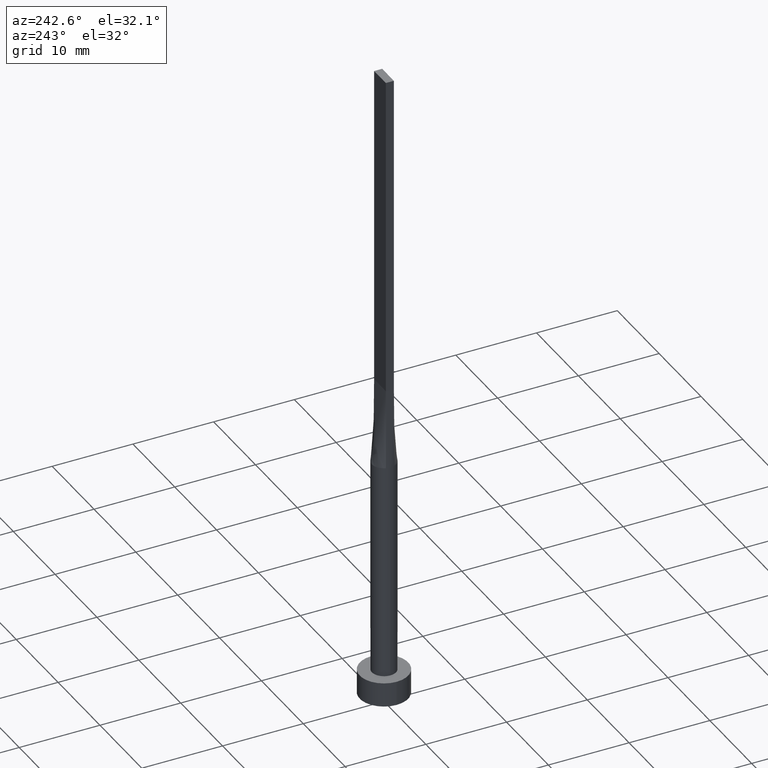
[diagram: clean part render]
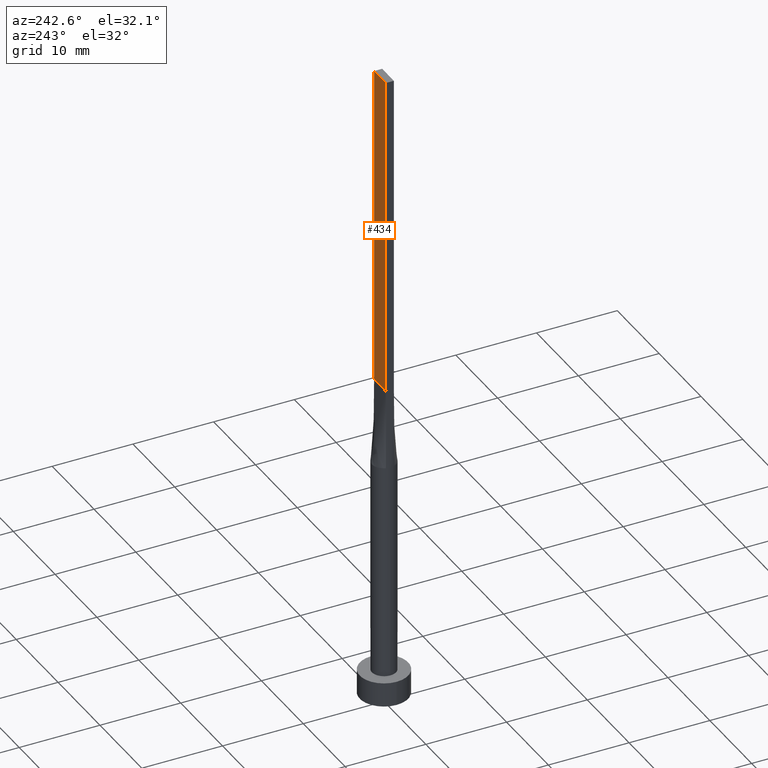
[diagram: same view with one face highlighted and labeled with its STEP entity id]
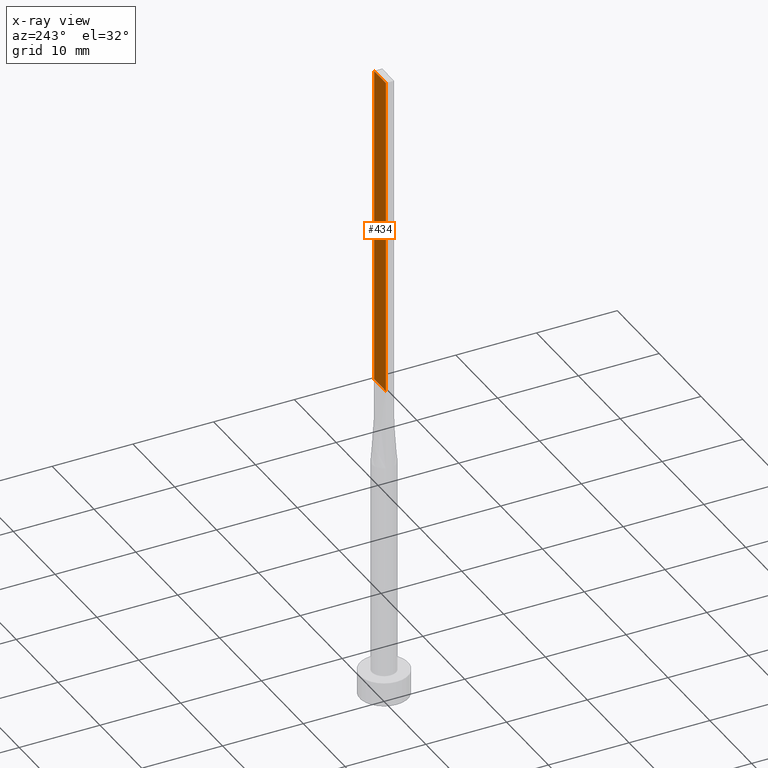
[diagram: x-ray of the same camera — body ghosted, the highlighted face saturated]
A machine part, auxiliary view. The second image highlights one B-rep face of the part: STEP entity #434.
The next image is the same camera in x-ray: the body ghosted, the highlighted face saturated — about 0% of this face is hidden behind the body in this view.
In plain terms, the highlighted planar face has unit normal (0, -1, 0).
Its self-contained STEP definition (entity closure, byte-faithful):
#3 = AXIS2_PLACEMENT_3D ( 'NONE', #540, #504, #375 ) ;
#18 = LINE ( 'NONE', #519, #230 ) ;
#42 = CARTESIAN_POINT ( 'NONE',  ( 1.399999999999999689, 0.5000000000000002220, 80.00000000000000000 ) ) ;
#58 = EDGE_CURVE ( 'NONE', #306, #435, #550, .T. ) ;
#90 = CARTESIAN_POINT ( 'NONE',  ( 1.399999999999999689, 0.5000000000000002220, 40.00000000000000000 ) ) ;
#108 = VECTOR ( 'NONE', #515, 1000.000000000000000 ) ;
#123 = EDGE_CURVE ( 'NONE', #332, #335, #150, .T. ) ;
#142 = CARTESIAN_POINT ( 'NONE',  ( -1.399999999999999689, 0.5000000000000002220, 80.00000000000000000 ) ) ;
#146 = DIRECTION ( 'NONE',  ( -1.000000000000000000, 0.000000000000000000, 0.000000000000000000 ) ) ;
#150 = LINE ( 'NONE', #333, #108 ) ;
#163 = EDGE_LOOP ( 'NONE', ( #205, #442, #234, #349 ) ) ;
#205 = ORIENTED_EDGE ( 'NONE', *, *, #123, .T. ) ;
#216 = EDGE_CURVE ( 'NONE', #435, #335, #18, .T. ) ;
#223 = DIRECTION ( 'NONE',  ( -0.000000000000000000, -0.000000000000000000, -1.000000000000000000 ) ) ;
#230 = VECTOR ( 'NONE', #556, 1000.000000000000000 ) ;
#234 = ORIENTED_EDGE ( 'NONE', *, *, #58, .F. ) ;
#240 = VECTOR ( 'NONE', #223, 1000.000000000000000 ) ;
#264 = LINE ( 'NONE', #542, #240 ) ;
#266 = VECTOR ( 'NONE', #146, 1000.000000000000000 ) ;
#272 = CARTESIAN_POINT ( 'NONE',  ( -1.399999999999999689, 0.5000000000000002220, 40.00000000000000000 ) ) ;
#306 = VERTEX_POINT ( 'NONE', #42 ) ;
#307 = EDGE_CURVE ( 'NONE', #306, #332, #264, .T. ) ;
#324 = FACE_OUTER_BOUND ( 'NONE', #163, .T. ) ;
#332 = VERTEX_POINT ( 'NONE', #90 ) ;
#333 = CARTESIAN_POINT ( 'NONE',  ( -1.399999999999999689, 0.5000000000000002220, 40.00000000000000000 ) ) ;
#335 = VERTEX_POINT ( 'NONE', #272 ) ;
#349 = ORIENTED_EDGE ( 'NONE', *, *, #307, .T. ) ;
#371 = PLANE ( 'NONE',  #3 ) ;
#375 = DIRECTION ( 'NONE',  ( 0.000000000000000000, -0.000000000000000000, -1.000000000000000000 ) ) ;
#410 = CARTESIAN_POINT ( 'NONE',  ( 1.399999999999999689, 0.5000000000000002220, 80.00000000000000000 ) ) ;
#434 = ADVANCED_FACE ( 'NONE', ( #324 ), #371, .F. ) ;
#435 = VERTEX_POINT ( 'NONE', #142 ) ;
#442 = ORIENTED_EDGE ( 'NONE', *, *, #216, .F. ) ;
#504 = DIRECTION ( 'NONE',  ( 0.000000000000000000, -1.000000000000000000, 0.000000000000000000 ) ) ;
#515 = DIRECTION ( 'NONE',  ( -1.000000000000000000, -0.000000000000000000, -0.000000000000000000 ) ) ;
#519 = CARTESIAN_POINT ( 'NONE',  ( -1.399999999999999689, 0.5000000000000002220, 80.00000000000000000 ) ) ;
#540 = CARTESIAN_POINT ( 'NONE',  ( 1.399999999999999689, 0.5000000000000002220, 80.00000000000000000 ) ) ;
#542 = CARTESIAN_POINT ( 'NONE',  ( 1.399999999999999689, 0.5000000000000002220, 80.00000000000000000 ) ) ;
#550 = LINE ( 'NONE', #410, #266 ) ;
#556 = DIRECTION ( 'NONE',  ( -0.000000000000000000, -0.000000000000000000, -1.000000000000000000 ) ) ;